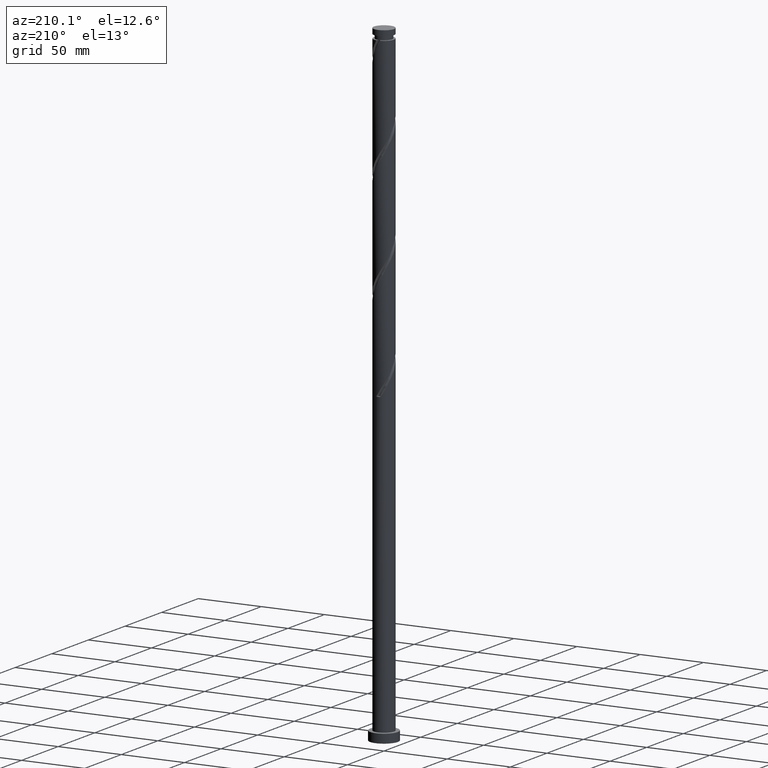
[diagram: clean part render]
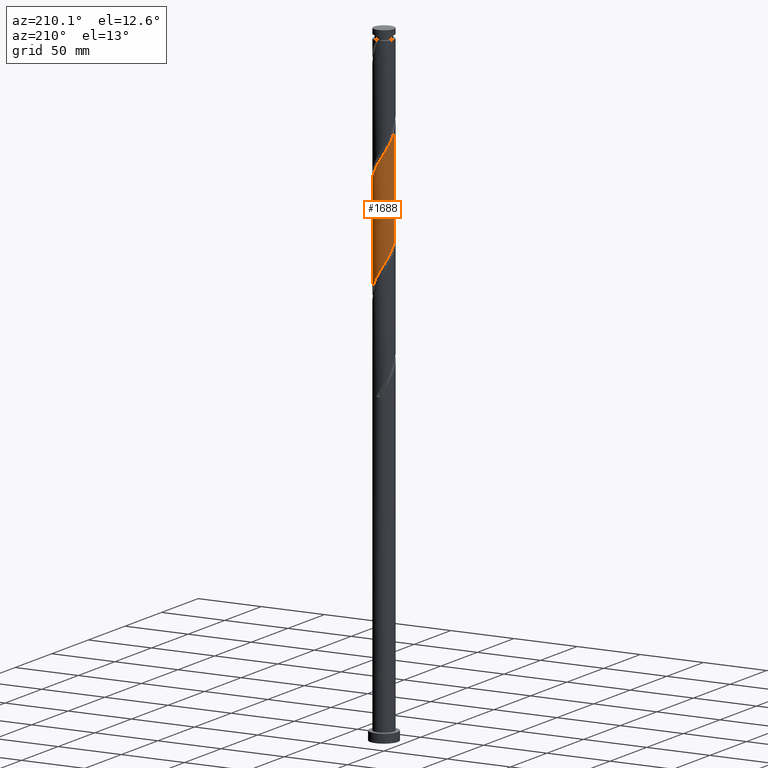
[diagram: same view with one face highlighted and labeled with its STEP entity id]
A machine part, auxiliary view. The second image highlights one B-rep face of the part: STEP entity #1688.
In plain terms, the highlighted cylindrical surface (edge-blend (fillet) strip) has radius 8 mm, axis along (-0, -0, -1).
Its self-contained STEP definition (entity closure, byte-faithful):
#17 = EDGE_CURVE ( 'NONE', #63, #254, #779, .T. ) ;
#57 = CARTESIAN_POINT ( 'NONE',  ( -5.074897616815214008, 6.234280214836361189, 337.6531742140034567 ) ) ;
#63 = VERTEX_POINT ( 'NONE', #238 ) ;
#67 = CARTESIAN_POINT ( 'NONE',  ( 7.701803129331644904, 2.302838286826535352, 311.6115075473367142 ) ) ;
#71 = CARTESIAN_POINT ( 'NONE',  ( 7.074349788705244002, 3.817644651523123489, 392.3406742140034567 ) ) ;
#83 = CARTESIAN_POINT ( 'NONE',  ( 7.996796334405415152, 0.8198072970504317603, 387.1323408806701991 ) ) ;
#127 =( BOUNDED_CURVE ( )  B_SPLINE_CURVE ( 2, ( #394, #1362, #231, #83, #1064, #1538, #1548, #71, #730, #253, #264, #719, #1719, #2019, #915, #905, #221, #1394, #1383, #1570, #596, #1246, #1778, #1914, #1102, #477, #806, #1768, #1272, #2078, #1740, #318, #1457, #1083, #924 ),
 .UNSPECIFIED., .F., .T. ) 
 B_SPLINE_CURVE_WITH_KNOTS ( ( 3, 2, 2, 2, 2, 2, 2, 2, 2, 2, 2, 2, 2, 2, 2, 2, 2, 3 ),
 ( 0.4295286902180874833, 0.4296875000000000000, 0.4375000000000000000, 0.4453125000000000000, 0.4531250000000000000, 0.4609375000000000000, 0.4687500000000000000, 0.4765625000000000000, 0.4843750000000000000, 0.4921875000000000000, 0.5000000000000000000, 0.5078125000000000000, 0.5156250000000000000, 0.5234375000000000000, 0.5312500000000000000, 0.5390625000000000000, 0.5468750000000000000, 0.5545286902180871502 ),
 .UNSPECIFIED. ) 
 CURVE ( )  GEOMETRIC_REPRESENTATION_ITEM ( )  RATIONAL_B_SPLINE_CURVE ( ( 0.9089165573359425654, 0.9090019243628472134, 0.9090909090909388146, 0.9047133878838449217, 0.9090909090909388146, 0.9047133878838449217, 0.9090909090909388146, 0.9047133878838449217, 0.9090909090909388146, 0.9047133878838449217, 0.9090909090909388146, 0.9047133878838449217, 0.9090909090909388146, 0.9047133878838449217, 0.9090909090909388146, 0.9047133878838449217, 0.9090909090909388146, 0.9047133878838449217, 0.9090909090909388146, 0.9047133878838449217, 0.9090909090909388146, 0.9047133878838449217, 0.9090909090909388146, 0.9047133878838449217, 0.9090909090909388146, 0.9047133878838449217, 0.9090909090909388146, 0.9047133878838449217, 0.9090909090909388146, 0.9047133878838449217, 0.9090909090909388146, 0.9047133878838449217, 0.9090909090909388146, 0.9048023726119367449, 0.9089165573359422323 ) ) 
 REPRESENTATION_ITEM ( '' )  );
#141 = ORIENTED_EDGE ( 'NONE', *, *, #1277, .F. ) ;
#195 = CARTESIAN_POINT ( 'NONE',  ( -7.840000000000000746, 1.591979899370598250, 346.7677575473367710 ) ) ;
#217 = CARTESIAN_POINT ( 'NONE',  ( 5.679353536596797092, 5.634265116796108863, 318.1219242140034567 ) ) ;
#221 = CARTESIAN_POINT ( 'NONE',  ( 1.529440464544438383, 7.852439867035869270, 404.0594242140035135 ) ) ;
#231 = CARTESIAN_POINT ( 'NONE',  ( 7.999936469572752173, 0.03188232739404883720, 385.8302575473368847 ) ) ;
#238 = CARTESIAN_POINT ( 'NONE',  ( -7.999999999999998224, 1.585746514809287056E-14, 349.4246211920003020 ) ) ;
#239 = LINE ( 'NONE', #401, #383 ) ;
#249 = CARTESIAN_POINT ( 'NONE',  ( 5.124426858357232106, 6.193632616776996613, 319.4240075473368279 ) ) ;
#253 = CARTESIAN_POINT ( 'NONE',  ( 6.193632616777009936, 5.124426858357238324, 394.9448408806701991 ) ) ;
#254 = VERTEX_POINT ( 'NONE', #289 ) ;
#264 = CARTESIAN_POINT ( 'NONE',  ( 5.634265116796118633, 5.679353536596803309, 396.2469242140035703 ) ) ;
#289 = CARTESIAN_POINT ( 'NONE',  ( 7.999999999999998224, 7.231660175669996548E-15, 307.7579545253336732 ) ) ;
#318 = CARTESIAN_POINT ( 'NONE',  ( -7.701803129331653786, 2.302838286826541125, 423.5906742140034567 ) ) ;
#359 = CARTESIAN_POINT ( 'NONE',  ( -7.999936469572738851, 0.03188232739405364585, 349.3719242140035135 ) ) ;
#379 = CARTESIAN_POINT ( 'NONE',  ( -0.7560426422623236498, 8.003076604740073208, 329.8406742140035703 ) ) ;
#383 = VECTOR ( 'NONE', #1704, 1000.000000000000000 ) ;
#394 = CARTESIAN_POINT ( 'NONE',  ( 8.000000000000012434, 1.106742219668252345E-14, 385.7775605693399257 ) ) ;
#400 = CARTESIAN_POINT ( 'NONE',  ( 7.403178404107801924, 3.031987717150562034, 312.9135908806700286 ) ) ;
#401 = CARTESIAN_POINT ( 'NONE',  ( -8.000000000000000000, 0.000000000000000000, 500.0000000000000000 ) ) ;
#477 = CARTESIAN_POINT ( 'NONE',  ( -5.124426858357238324, 6.193632616777009936, 415.7781742140034567 ) ) ;
#530 = CARTESIAN_POINT ( 'NONE',  ( 2.364152501690765629, 7.683203665594592557, 324.6323408806701423 ) ) ;
#540 = CARTESIAN_POINT ( 'NONE',  ( 7.999999999999998224, 0.7718385194318649889, 309.0339346307497976 ) ) ;
#543 = DIRECTION ( 'NONE',  ( -0.000000000000000000, -0.000000000000000000, -1.000000000000000000 ) ) ;
#596 = CARTESIAN_POINT ( 'NONE',  ( -1.591979899370597362, 7.840000000000009628, 409.2677575473368847 ) ) ;
#632 = CARTESIAN_POINT ( 'NONE',  ( -7.074349788705235120, 3.817644651523122157, 342.8615075473368847 ) ) ;
#698 = CYLINDRICAL_SURFACE ( 'NONE', #2044, 8.000000000000000000 ) ;
#705 = CARTESIAN_POINT ( 'NONE',  ( -3.761137147474594489, 7.104553678883956280, 335.0490075473367710 ) ) ;
#719 = CARTESIAN_POINT ( 'NONE',  ( 5.074897616815221113, 6.234280214836371847, 397.5490075473368847 ) ) ;
#726 = CARTESIAN_POINT ( 'NONE',  ( -3.031987717150564698, 7.403178404107800148, 333.7469242140033998 ) ) ;
#730 = CARTESIAN_POINT ( 'NONE',  ( 6.633991202741126081, 4.471035754940183793, 393.6427575473369416 ) ) ;
#779 =( BOUNDED_CURVE ( )  B_SPLINE_CURVE ( 2, ( #1166, #1821, #359, #2086, #195, #1942, #849, #632, #1280, #1932, #1132, #57, #1337, #705, #726, #1996, #1196, #379, #1534, #1849, #1715, #530, #1175, #1681, #1379, #249, #217, #1511, #2005, #1016, #400, #67, #2015, #540, #890 ),
 .UNSPECIFIED., .F., .T. ) 
 B_SPLINE_CURVE_WITH_KNOTS ( ( 3, 2, 2, 2, 2, 2, 2, 2, 2, 2, 2, 2, 2, 2, 2, 2, 2, 3 ),
 ( 0.6795286902180872612, 0.6796875000000000000, 0.6875000000000000000, 0.6953125000000000000, 0.7031250000000000000, 0.7109375000000000000, 0.7187500000000000000, 0.7265625000000000000, 0.7343750000000000000, 0.7421875000000000000, 0.7500000000000000000, 0.7578125000000000000, 0.7656250000000000000, 0.7734375000000000000, 0.7812500000000000000, 0.7890625000000000000, 0.7968750000000000000, 0.8045286902180870392 ),
 .UNSPECIFIED. ) 
 CURVE ( )  GEOMETRIC_REPRESENTATION_ITEM ( )  RATIONAL_B_SPLINE_CURVE ( ( 0.9089165573359369033, 0.9090019243628416623, 0.9090909090909334855, 0.9047133878838395926, 0.9090909090909334855, 0.9047133878838395926, 0.9090909090909334855, 0.9047133878838395926, 0.9090909090909334855, 0.9047133878838395926, 0.9090909090909334855, 0.9047133878838395926, 0.9090909090909334855, 0.9047133878838395926, 0.9090909090909334855, 0.9047133878838395926, 0.9090909090909334855, 0.9047133878838395926, 0.9090909090909334855, 0.9047133878838395926, 0.9090909090909334855, 0.9047133878838395926, 0.9090909090909334855, 0.9047133878838395926, 0.9090909090909334855, 0.9047133878838395926, 0.9090909090909334855, 0.9047133878838395926, 0.9090909090909334855, 0.9047133878838395926, 0.9090909090909334855, 0.9047133878838395926, 0.9090909090909334855, 0.9048023726119314158, 0.9089165573359367922 ) ) 
 REPRESENTATION_ITEM ( '' )  );
#806 = CARTESIAN_POINT ( 'NONE',  ( -5.679353536596805974, 5.634265116796116857, 417.0802575473368847 ) ) ;
#849 = CARTESIAN_POINT ( 'NONE',  ( -7.378776727149912062, 3.090898576606945003, 344.1635908806701423 ) ) ;
#867 = EDGE_LOOP ( 'NONE', ( #141, #1549, #1012, #2020 ) ) ;
#874 = FACE_OUTER_BOUND ( 'NONE', #867, .T. ) ;
#890 = CARTESIAN_POINT ( 'NONE',  ( 7.999999999999998224, 7.231660175669996548E-15, 307.7579545253336164 ) ) ;
#905 = CARTESIAN_POINT ( 'NONE',  ( 2.302838286826541125, 7.701803129331653786, 402.7573408806700854 ) ) ;
#915 = CARTESIAN_POINT ( 'NONE',  ( 3.031987717150570028, 7.403178404107809030, 401.4552575473369416 ) ) ;
#924 = CARTESIAN_POINT ( 'NONE',  ( -8.000000000000010658, 8.517702835776209769E-15, 427.4442272360066113 ) ) ;
#1012 = ORIENTED_EDGE ( 'NONE', *, *, #17, .F. ) ;
#1016 = CARTESIAN_POINT ( 'NONE',  ( 7.104553678883956280, 3.761137147474594933, 314.2156742140035703 ) ) ;
#1064 = CARTESIAN_POINT ( 'NONE',  ( 7.840000000000009628, 1.591979899370597806, 388.4344242140033998 ) ) ;
#1083 = CARTESIAN_POINT ( 'NONE',  ( -8.000000000000012434, 0.7718385194318581055, 426.1682471305906006 ) ) ;
#1102 = CARTESIAN_POINT ( 'NONE',  ( -4.471035754940181128, 6.633991202741127857, 414.4760908806701991 ) ) ;
#1132 = CARTESIAN_POINT ( 'NONE',  ( -5.634265116796108863, 5.679353536596797980, 338.9552575473368847 ) ) ;
#1166 = CARTESIAN_POINT ( 'NONE',  ( -7.999999999999998224, 1.585746514809287056E-14, 349.4246211920003020 ) ) ;
#1175 = CARTESIAN_POINT ( 'NONE',  ( 3.090898576606947223, 7.378776727149911174, 323.3302575473368279 ) ) ;
#1196 = CARTESIAN_POINT ( 'NONE',  ( -1.529440464544429945, 7.852439867035857723, 331.1427575473367142 ) ) ;
#1246 = CARTESIAN_POINT ( 'NONE',  ( -2.364152501690767849, 7.683203665594601439, 410.5698408806700854 ) ) ;
#1272 = CARTESIAN_POINT ( 'NONE',  ( -6.669416946860168949, 4.418017382144911132, 419.6844242140035135 ) ) ;
#1277 = EDGE_CURVE ( 'NONE', #1720, #1638, #127, .T. ) ;
#1280 = CARTESIAN_POINT ( 'NONE',  ( -6.633991202741117199, 4.471035754940177576, 341.5594242140034567 ) ) ;
#1337 = CARTESIAN_POINT ( 'NONE',  ( -4.418017382144905802, 6.669416946860161843, 336.3510908806701423 ) ) ;
#1350 = CARTESIAN_POINT ( 'NONE',  ( 0.000000000000000000, 0.000000000000000000, 500.0000000000000000 ) ) ;
#1362 = CARTESIAN_POINT ( 'NONE',  ( 8.000000000000010658, 0.01594122699411236813, 385.8039141238572824 ) ) ;
#1379 = CARTESIAN_POINT ( 'NONE',  ( 4.471035754940181128, 6.633991202741113646, 320.7260908806700286 ) ) ;
#1383 = CARTESIAN_POINT ( 'NONE',  ( -0.03188232739404842087, 7.999936469572752173, 406.6635908806700854 ) ) ;
#1394 = CARTESIAN_POINT ( 'NONE',  ( 0.7560426422623270915, 8.003076604740083866, 405.3615075473368279 ) ) ;
#1457 = CARTESIAN_POINT ( 'NONE',  ( -7.852439867035869270, 1.529440464544433942, 424.8927575473368279 ) ) ;
#1479 = CARTESIAN_POINT ( 'NONE',  ( -8.000000000000010658, 8.517702835776209769E-15, 427.4442272360066113 ) ) ;
#1508 = VECTOR ( 'NONE', #2054, 1000.000000000000000 ) ;
#1511 = CARTESIAN_POINT ( 'NONE',  ( 6.234280214836365630, 5.074897616815213119, 316.8198408806700854 ) ) ;
#1525 = CARTESIAN_POINT ( 'NONE',  ( 8.000000000000012434, 1.106742219668252345E-14, 385.7775605693399825 ) ) ;
#1534 = CARTESIAN_POINT ( 'NONE',  ( 0.03188232739405321564, 7.999936469572738851, 328.5385908806701423 ) ) ;
#1538 = CARTESIAN_POINT ( 'NONE',  ( 7.683203665594604104, 2.364152501690763852, 389.7365075473368279 ) ) ;
#1548 = CARTESIAN_POINT ( 'NONE',  ( 7.378776727149924497, 3.090898576606948112, 391.0385908806701423 ) ) ;
#1549 = ORIENTED_EDGE ( 'NONE', *, *, #1970, .T. ) ;
#1570 = CARTESIAN_POINT ( 'NONE',  ( -0.8198072970504313162, 7.996796334405415152, 407.9656742140033998 ) ) ;
#1638 = VERTEX_POINT ( 'NONE', #1479 ) ;
#1681 = CARTESIAN_POINT ( 'NONE',  ( 3.817644651523122601, 7.074349788705234232, 322.0281742140035135 ) ) ;
#1688 = ADVANCED_FACE ( 'NONE', ( #874 ), #698, .T. ) ;
#1692 = LINE ( 'NONE', #2016, #1508 ) ;
#1704 = DIRECTION ( 'NONE',  ( -0.000000000000000000, -0.000000000000000000, -1.000000000000000000 ) ) ;
#1715 = CARTESIAN_POINT ( 'NONE',  ( 1.591979899370599805, 7.840000000000000746, 325.9344242140035703 ) ) ;
#1719 = CARTESIAN_POINT ( 'NONE',  ( 4.418017382144913796, 6.669416946860166284, 398.8510908806701423 ) ) ;
#1720 = VERTEX_POINT ( 'NONE', #1525 ) ;
#1740 = CARTESIAN_POINT ( 'NONE',  ( -7.403178404107809030, 3.031987717150571360, 422.2885908806701991 ) ) ;
#1768 = CARTESIAN_POINT ( 'NONE',  ( -6.234280214836370959, 5.074897616815222889, 418.3823408806701423 ) ) ;
#1778 = CARTESIAN_POINT ( 'NONE',  ( -3.090898576606947223, 7.378776727149924497, 411.8719242140036272 ) ) ;
#1821 = CARTESIAN_POINT ( 'NONE',  ( -7.999999999999998224, 0.01594122699409487517, 349.3982676374830021 ) ) ;
#1849 = CARTESIAN_POINT ( 'NONE',  ( 0.8198072970504303170, 7.996796334405404494, 327.2365075473368279 ) ) ;
#1914 = CARTESIAN_POINT ( 'NONE',  ( -3.817644651523126154, 7.074349788705243114, 413.1740075473368847 ) ) ;
#1932 = CARTESIAN_POINT ( 'NONE',  ( -6.193632616776999278, 5.124426858357232106, 340.2573408806701423 ) ) ;
#1942 = CARTESIAN_POINT ( 'NONE',  ( -7.683203665594589005, 2.364152501690766517, 345.4656742140034567 ) ) ;
#1970 = EDGE_CURVE ( 'NONE', #1720, #254, #1692, .T. ) ;
#1996 = CARTESIAN_POINT ( 'NONE',  ( -2.302838286826536240, 7.701803129331646680, 332.4448408806700854 ) ) ;
#1999 = DIRECTION ( 'NONE',  ( -1.000000000000000000, 0.000000000000000000, 0.000000000000000000 ) ) ;
#2005 = CARTESIAN_POINT ( 'NONE',  ( 6.669416946860161843, 4.418017382144903138, 315.5177575473368279 ) ) ;
#2015 = CARTESIAN_POINT ( 'NONE',  ( 7.852439867035857723, 1.529440464544432388, 310.3094242140035135 ) ) ;
#2016 = CARTESIAN_POINT ( 'NONE',  ( 8.000000000000000000, 9.797174393178825657E-16, 500.0000000000000000 ) ) ;
#2019 = CARTESIAN_POINT ( 'NONE',  ( 3.761137147474604259, 7.104553678883962498, 400.1531742140034567 ) ) ;
#2020 = ORIENTED_EDGE ( 'NONE', *, *, #2032, .F. ) ;
#2032 = EDGE_CURVE ( 'NONE', #1638, #63, #239, .T. ) ;
#2044 = AXIS2_PLACEMENT_3D ( 'NONE', #1350, #543, #1999 ) ;
#2054 = DIRECTION ( 'NONE',  ( -0.000000000000000000, -0.000000000000000000, -1.000000000000000000 ) ) ;
#2078 = CARTESIAN_POINT ( 'NONE',  ( -7.104553678883964274, 3.761137147474600262, 420.9865075473368279 ) ) ;
#2086 = CARTESIAN_POINT ( 'NONE',  ( -7.996796334405404494, 0.8198072970504300949, 348.0698408806701423 ) ) ;